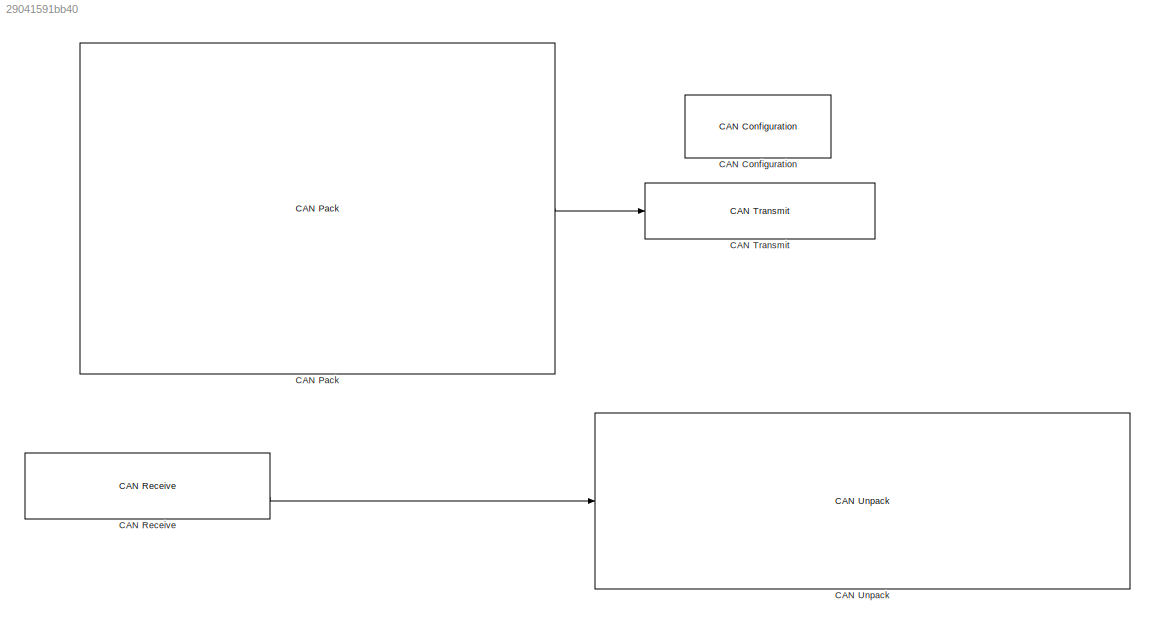
MODEL slx_29041591bb40
KIND model
CONFIG AbsTol = auto
CONFIG EnableMultiTasking = off
CONFIG FixedStep = auto
CONFIG MaxStep = auto
CONFIG MinStep = auto
CONFIG RelTol = 1e-3
CONFIG SampleTimeConstraint = Unconstrained
CONFIG Solver = VariableStepAuto
CONFIG SolverName = VariableStepAuto
CONFIG StartTime = 0.0
CONFIG StopTime = 10.0
BLOCK [Reference] CAN Configuration  REF=canlib/CAN Configuration
  Ports = []
  SourceBlock = canlib/CAN Configuration
  SourceProductBaseCode = VN
  SourceProductName = Vehicle Network Toolbox
  SourceType = CAN Configuration
BLOCK [Reference] CAN Pack  REF=canmsglib/CAN Pack
  Ports = [12, 1]
  SourceBlock = canmsglib/CAN Pack
  SourceProductBaseCode = VN
  SourceProductName = Vehicle Network Toolbox
  SourceType = CAN Pack
BLOCK [Reference] CAN Receive  REF=canlib/CAN Receive
  Ports = [0, 2]
  SourceBlock = canlib/CAN Receive
  SourceProductBaseCode = VN
  SourceProductName = Vehicle Network Toolbox
  SourceType = CAN Receive
BLOCK [Reference] CAN Transmit  REF=canlib/CAN Transmit
  Ports = [1]
  SourceBlock = canlib/CAN Transmit
  SourceProductBaseCode = VN
  SourceProductName = Vehicle Network Toolbox
  SourceType = CAN Transmit
BLOCK [Reference] CAN Unpack  REF=canmsglib/CAN Unpack
  Ports = [1, 6]
  SourceBlock = canmsglib/CAN Unpack
  SourceProductBaseCode = VN
  SourceProductName = Vehicle Network Toolbox
  SourceType = CAN Unpack
LINE CAN Pack:1 -> CAN Transmit:1
LINE CAN Receive:2 -> CAN Unpack:1
